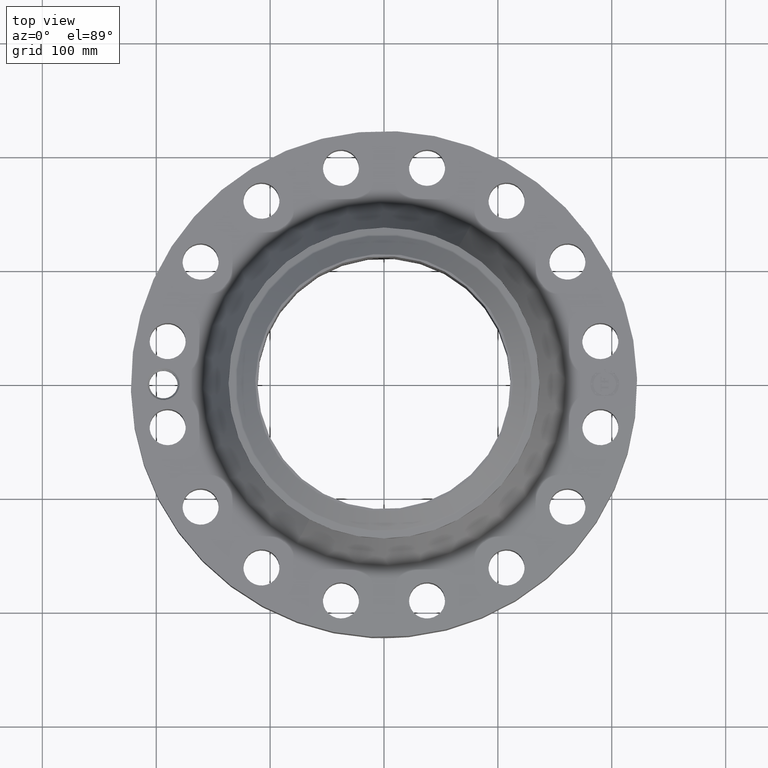
[diagram: clean part render]
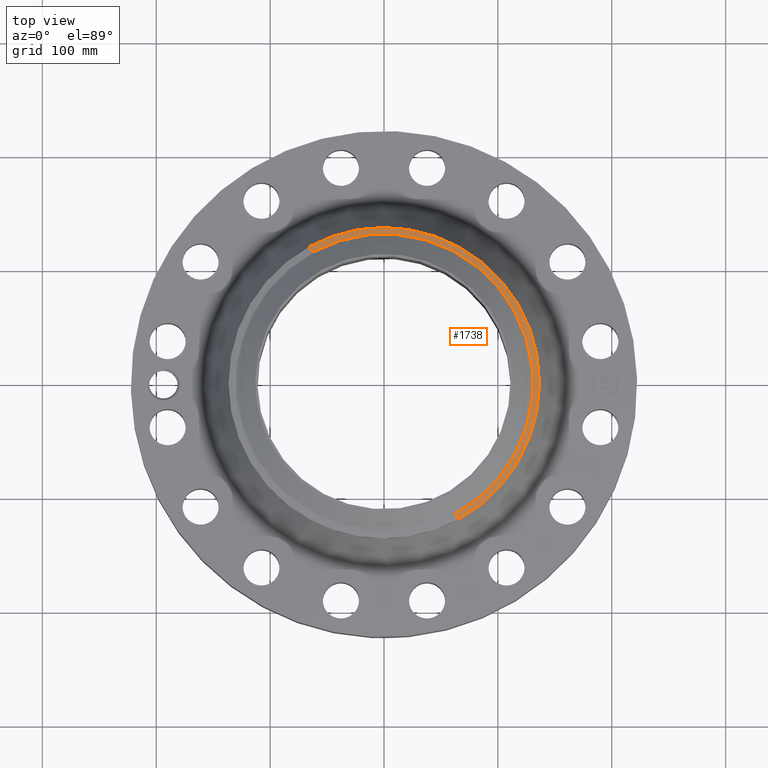
[diagram: same view with one face highlighted and labeled with its STEP entity id]
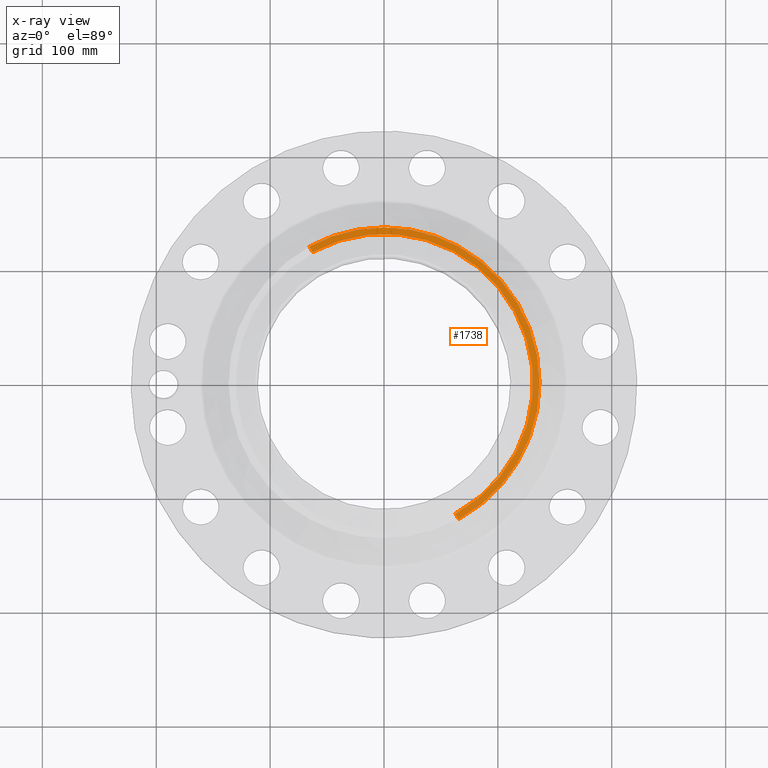
[diagram: x-ray of the same camera — body ghosted, the highlighted face saturated]
A machine part, top view. The second image highlights one B-rep face of the part: STEP entity #1738.
The next image is the same camera in x-ray: the body ghosted, the highlighted face saturated — about 0% of this face is hidden behind the body in this view.
In plain terms, the highlighted conical surface has half-angle 80 deg.
Its self-contained STEP definition (entity closure, byte-faithful):
#1347=AXIS2_PLACEMENT_3D('Circle Axis2P3D',#1345,#1346,$) ;
#1683=AXIS2_PLACEMENT_3D('Cone Axis2P3D',#1680,#1681,#1682) ;
#1721=AXIS2_PLACEMENT_3D('Circle Axis2P3D',#1719,#1720,$) ;
#1728=AXIS2_PLACEMENT_3D('Circle Axis2P3D',#1726,#1727,$) ;
#1323=CARTESIAN_POINT('Vertex',(-2.46975769445,4.52086113529,4.67341601924)) ;
#1330=CARTESIAN_POINT('Vertex',(2.46975769445,-4.52086113529,4.67341601924)) ;
#1345=CARTESIAN_POINT('Axis2P3D Location',(0.,0.,4.67341601924)) ;
#1680=CARTESIAN_POINT('Axis2P3D Location',(0.,0.,4.67341601924)) ;
#1685=CARTESIAN_POINT('Line Origine',(2.52333498223,-4.61893370274,4.65371093341)) ;
#1689=CARTESIAN_POINT('Vertex',(2.57691227001,-4.71700627018,4.63400584757)) ;
#1692=CARTESIAN_POINT('Line Origine',(-2.52333498223,4.61893370274,4.65371093341)) ;
#1696=CARTESIAN_POINT('Vertex',(-2.57691227001,4.71700627018,4.63400584757)) ;
#1719=CARTESIAN_POINT('Axis2P3D Location',(0.,0.,4.63400584757)) ;
#1723=CARTESIAN_POINT('Vertex',(2.57691227001,4.71700627018,4.63400584757)) ;
#1726=CARTESIAN_POINT('Axis2P3D Location',(0.,0.,4.63400584757)) ;
#1346=DIRECTION('Axis2P3D Direction',(0.,0.,0.0393700787402)) ;
#1681=DIRECTION('Axis2P3D Direction',(-0.,-0.,-0.0393700787402)) ;
#1682=DIRECTION('Axis2P3D XDirection',(-0.0188750212049,0.0345504945626,0.)) ;
#1686=DIRECTION('Vector Direction',(0.0185882672208,-0.0340255949157,-0.00683654242783)) ;
#1693=DIRECTION('Vector Direction',(-0.0185882672208,0.0340255949157,-0.00683654242783)) ;
#1720=DIRECTION('Axis2P3D Direction',(0.,0.,-0.0393700787402)) ;
#1727=DIRECTION('Axis2P3D Direction',(0.,0.,-0.0393700787402)) ;
#1687=VECTOR('Line Direction',#1686,0.0393700787402) ;
#1694=VECTOR('Line Direction',#1693,0.0393700787402) ;
#1732=ORIENTED_EDGE('',*,*,#1698,.F.) ;
#1733=ORIENTED_EDGE('',*,*,#1349,.F.) ;
#1734=ORIENTED_EDGE('',*,*,#1691,.T.) ;
#1735=ORIENTED_EDGE('',*,*,#1725,.T.) ;
#1736=ORIENTED_EDGE('',*,*,#1730,.F.) ;
#1738=ADVANCED_FACE('PartBody',(#1737),#1684,.T.) ;
#1348=CIRCLE('generated circle',#1347,5.15149380994) ;
#1722=CIRCLE('generated circle',#1721,5.37500000002) ;
#1729=CIRCLE('generated circle',#1728,5.37500000002) ;
#1684=CONICAL_SURFACE('Cone',#1683,5.15149380994,1.3962634016) ;
#1349=EDGE_CURVE('',#1331,#1324,#1348,.T.) ;
#1691=EDGE_CURVE('',#1331,#1690,#1688,.T.) ;
#1698=EDGE_CURVE('',#1324,#1697,#1695,.T.) ;
#1725=EDGE_CURVE('',#1690,#1724,#1722,.F.) ;
#1730=EDGE_CURVE('',#1697,#1724,#1729,.T.) ;
#1731=EDGE_LOOP('',(#1732,#1733,#1734,#1735,#1736)) ;
#1737=FACE_OUTER_BOUND('',#1731,.T.) ;
#1688=LINE('Line',#1685,#1687) ;
#1695=LINE('Line',#1692,#1694) ;
#1324=VERTEX_POINT('',#1323) ;
#1331=VERTEX_POINT('',#1330) ;
#1690=VERTEX_POINT('',#1689) ;
#1697=VERTEX_POINT('',#1696) ;
#1724=VERTEX_POINT('',#1723) ;